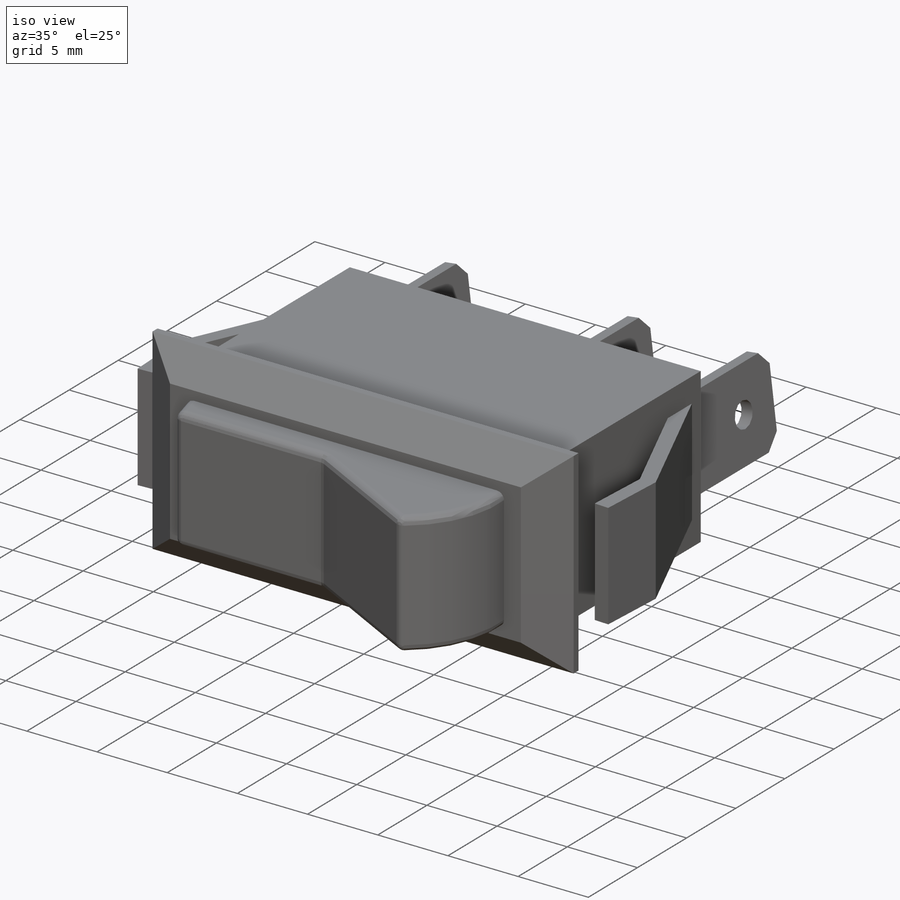
[diagram: iso view]
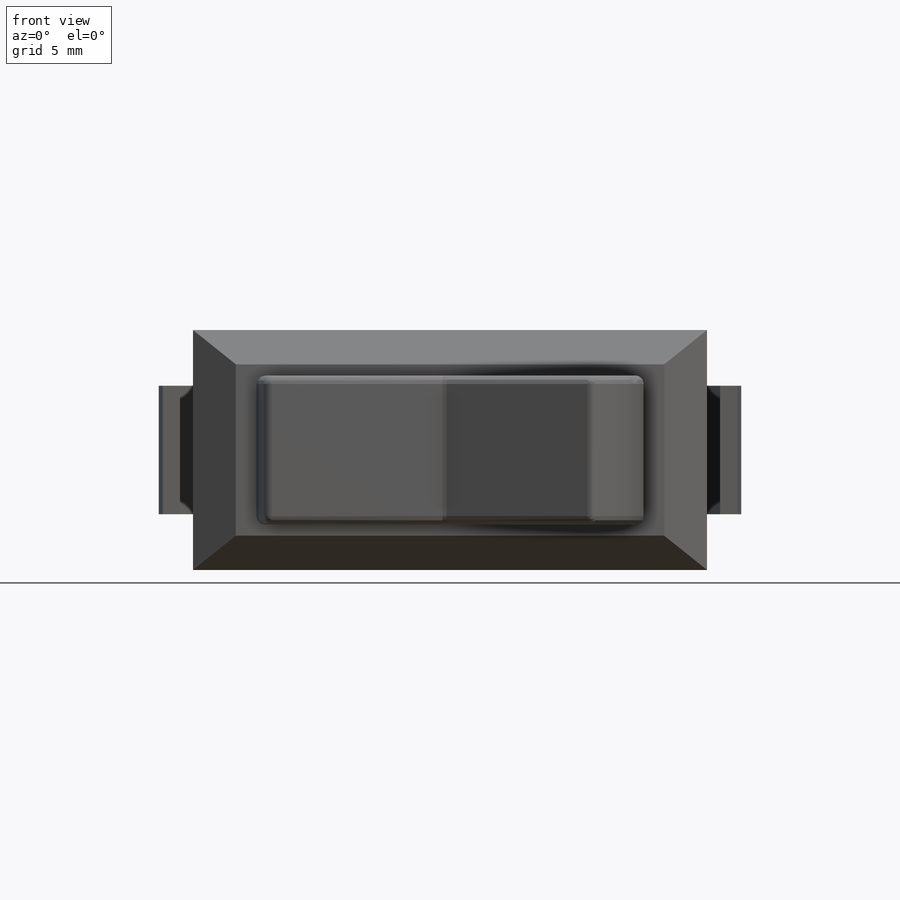
[diagram: front view]
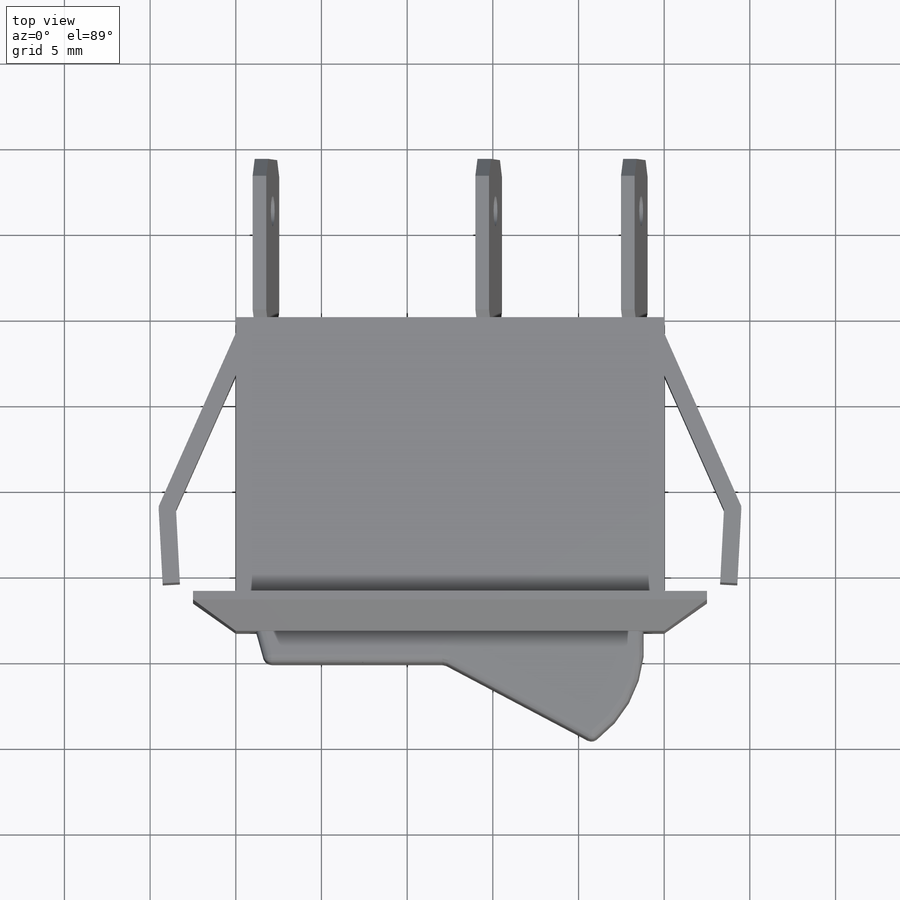
[diagram: top view]
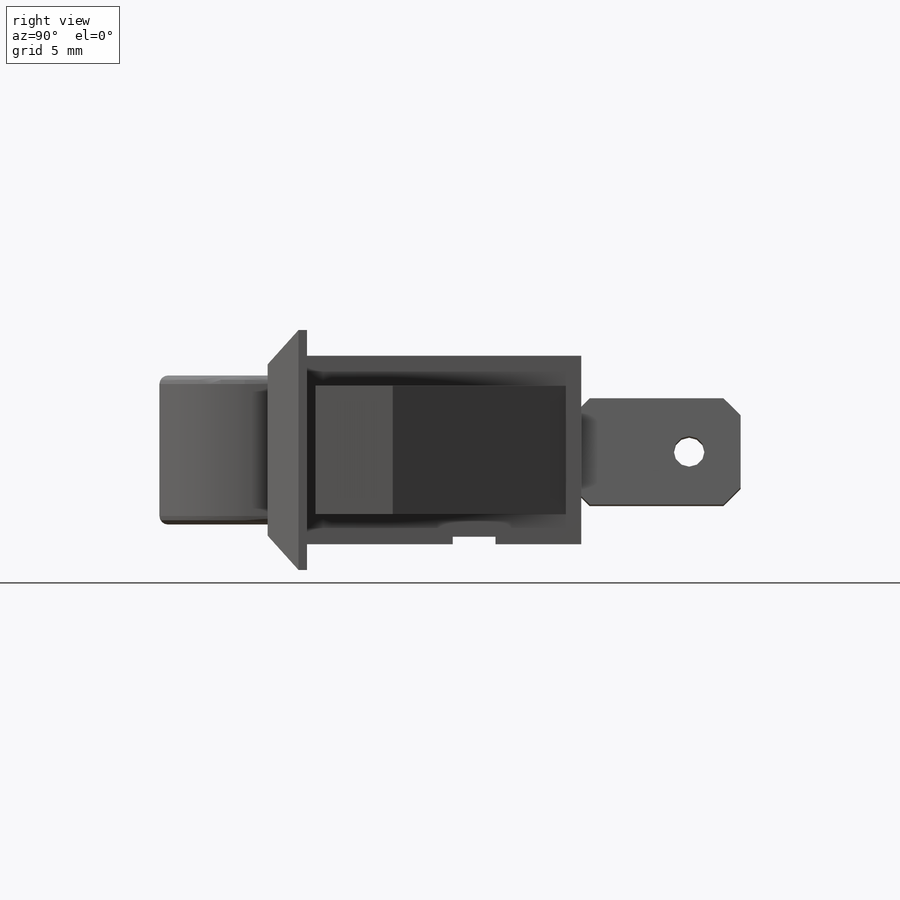
[diagram: right view]
SOLIDWORKS PART (.sldprt)
format: sldprt  version: not decoded by parser v0  size: 386,560 bytes
history: native  units: mm
features: sketch x6, extrude x5, plane x4, chamfer x2, pattern_linear x2, material x1, mirror x1, fillet x1, cut_extrude x1 (+12 scaffold rows collapsed)
feature tree (35):
  scaffold x12  (default folders/planes/origin — collapsed)
  material  "Material <not specified>"
  sketch  "Sketch1"  dims[D1=25.0mm D2=11.0mm]
  extrude  "Extrude1"  Depth=16mm
  sketch  "Sketch2"  dims[D1=30.0mm D2=14.0mm D3=1.5mm D4=2.5mm]
  extrude  "Extrude2"  Depth=2.3mm
  chamfer  "Chamfer1"  Distance=1.8mm
  chamfer  "Chamfer2"  Distance=1.8mm
  plane  "Plane1"  Offset=5.5mm
  sketch  "Sketch4"  dims[c1.D1=11.0mm c1.D2=4.5mm c1.D3=~11.080219mm c2.D3=246.0deg c2.D4=~5.875844mm c3.D4=156.0deg c4.D4=~5.875844mm c5.D4=273.0deg c5.D5=15.5mm c5.D6=1.0mm]
  extrude  "Extrude3"  Depth=3.75mm
  plane  "Plane2"  Offset=12.5mm
  mirror  "Mirror1"
  sketch  "Sketch6"  dims[D1=22.6mm D2=11.3mm D3=4.15mm D4=8.7mm]
  extrude  "Extrude4"  Depth=4.35mm
  fillet  "Fillet1"  Radius=0.5mm
  sketch  "Sketch7"  dims[D1=2.5mm D2=5.0mm]
  cut_extrude  "Cut-Extrude2"  Depth=0.44mm
  plane  "Plane3"
  plane  "Plane4"  Offset=2mm
  sketch  "Sketch8"  dims[D3=1.8mm D1=9.3mm D2=6.25mm D4=3.125mm D7=3.0mm]
  extrude  "Extrude5"  Depth=0.8mm
  pattern_linear  "LPattern1"  Count1=2 Count2=1 Spacing1=13mm Spacing2=50mm
  pattern_linear  "LPattern2"  Count1=2 Count2=1 Spacing1=21.5mm Spacing2=50mm
decode coverage: 17 of 18 modeling features carry decoded parameters
note: ~ marks probable driven/reference dimensions
note: suppression state not decoded; provenance and decode notes live in map.json
